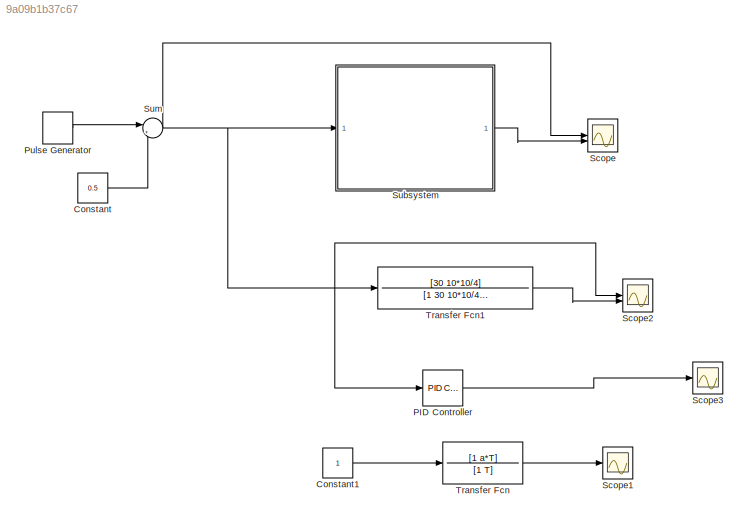
MODEL slx_9a09b1b37c67
KIND model
CONFIG AbsTol = auto
CONFIG EnableMultiTasking = off
CONFIG FixedStep = auto
CONFIG MaxStep = auto
CONFIG MinStep = auto
CONFIG RelTol = 1e-3
CONFIG SampleTimeConstraint = Unconstrained
CONFIG SolverName = VariableStepAuto
CONFIG StartTime = 0.0
CONFIG StopTime = 20
BLOCK [Constant] Constant
  Value = 0.5
BLOCK [Constant] Constant1
BLOCK [Reference] PID Controller  REF=slpidlib/PID Controller
  LibrarySourceBlock = simulink/Continuous/PID Controller
  SourceBlock = slpidlib/PID Controller
  SourceType = PID 1dof
BLOCK [DiscretePulseGenerator] Pulse Generator
  Period = 5
  PulseType = Time based
  PulseWidth = 50
BLOCK [Scope] Scope
  Floating = off
  NumInputPorts = 2
  ScopeSpecificationString = Simulink.scopes.TimeScopeBlockCfg('CurrentConfiguration', extmgr.ConfigurationSet(extmgr.Configuration('Core','General UI',true),extmgr.Configuration('Core','Source UI',true),extmgr.Configuration('Sources','WiredSimulink',true),extmgr.Configuration('Visuals','Time Domain',true,'SerializedDisplays',{struct('MinYLimReal','-1.81249','MaxYLimReal','1.52216','YLabelReal','','MinYLimMag','0.00000','MaxY...<+1414ch>
BLOCK [Scope] Scope1
  Floating = off
  NumInputPorts = 1
  ScopeSpecificationString = Simulink.scopes.TimeScopeBlockCfg('CurrentConfiguration', extmgr.ConfigurationSet(extmgr.Configuration('Core','General UI',true),extmgr.Configuration('Core','Source UI',true),extmgr.Configuration('Sources','WiredSimulink',true,'DataLoggingVariableName','ScopeData1'),extmgr.Configuration('Visuals','Time Domain',true,'SerializedDisplays',{struct('MinYLimReal','-0.24999','MaxYLimReal','2.2499','YLabe...<+1397ch>
BLOCK [Scope] Scope2
  Floating = off
  NumInputPorts = 2
  ScopeSpecificationString = Simulink.scopes.TimeScopeBlockCfg('CurrentConfiguration', extmgr.ConfigurationSet(extmgr.Configuration('Core','General UI',true),extmgr.Configuration('Core','Source UI',true),extmgr.Configuration('Sources','WiredSimulink',true,'DataLoggingVariableName','ScopeData3'),extmgr.Configuration('Visuals','Time Domain',true,'SerializedDisplays',{struct('MinYLimReal','-1.16634','MaxYLimReal','0.58766','YLab...<+1451ch>
BLOCK [Scope] Scope3
  Floating = off
  NumInputPorts = 1
  ScopeSpecificationString = Simulink.scopes.TimeScopeBlockCfg('CurrentConfiguration', extmgr.ConfigurationSet(extmgr.Configuration('Core','General UI',true),extmgr.Configuration('Core','Source UI',true),extmgr.Configuration('Sources','WiredSimulink',true,'DataLoggingVariableName','ScopeData4'),extmgr.Configuration('Visuals','Time Domain',true,'SerializedDisplays',{struct('MinYLimReal','-3750015.625','MaxYLimReal','3750015.62...<+1474ch>
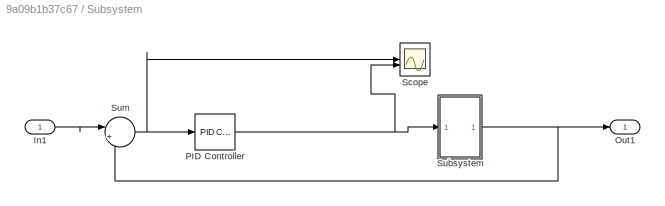
BLOCK [SubSystem] Subsystem
BLOCK [Inport] Subsystem/In1
BLOCK [Outport] Subsystem/Out1
BLOCK [Reference] Subsystem/PID Controller  REF=slpidlib/PID Controller
  LibrarySourceBlock = simulink/Continuous/PID Controller
  SourceBlock = slpidlib/PID Controller
  SourceType = PID 1dof
BLOCK [Scope] Subsystem/Scope
  Floating = off
  NumInputPorts = 2
  ScopeSpecificationString = Simulink.scopes.TimeScopeBlockCfg('CurrentConfiguration', extmgr.ConfigurationSet(extmgr.Configuration('Core','General UI',true),extmgr.Configuration('Core','Source UI',true),extmgr.Configuration('Sources','WiredSimulink',true,'DataLoggingVariableName','ScopeData2'),extmgr.Configuration('Visuals','Time Domain',true,'SerializedDisplays',{struct('MinYLimReal','-0.11893','MaxYLimReal','0.10953','YLab...<+2099ch>
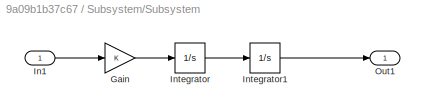
BLOCK [SubSystem] Subsystem/Subsystem
BLOCK [Gain] Subsystem/Subsystem/Gain
BLOCK [Inport] Subsystem/Subsystem/In1
BLOCK [Integrator] Subsystem/Subsystem/Integrator
BLOCK [Integrator] Subsystem/Subsystem/Integrator1
BLOCK [Outport] Subsystem/Subsystem/Out1
BLOCK [Sum] Subsystem/Sum
  Inputs = |+-
BLOCK [Sum] Sum
  Inputs = |+-
BLOCK [TransferFcn] Transfer Fcn
  Denominator = [1 T]
  Numerator = [1 a*T]
BLOCK [TransferFcn] Transfer Fcn1
  Denominator = [1 30 10*10/4 ]
  Numerator = [30 10*10/4]
LINE Constant1:1 -> Transfer Fcn:1
LINE Constant:1 -> Sum:2
LINE PID Controller:1 -> Scope3:1
LINE Pulse Generator:1 -> Sum:1
LINE Subsystem/In1:1 -> Subsystem/Sum:1
NET Subsystem/PID Controller:1 -> Subsystem/Scope:2, Subsystem/Subsystem:1
LINE Subsystem/Subsystem/Gain:1 -> Subsystem/Subsystem/Integrator:1
LINE Subsystem/Subsystem/In1:1 -> Subsystem/Subsystem/Gain:1
LINE Subsystem/Subsystem/Integrator1:1 -> Subsystem/Subsystem/Out1:1
LINE Subsystem/Subsystem/Integrator:1 -> Subsystem/Subsystem/Integrator1:1
NET Subsystem/Subsystem:1 -> Subsystem/Out1:1, Subsystem/Sum:2
NET Subsystem/Sum:1 -> Subsystem/PID Controller:1, Subsystem/Scope:1
LINE Subsystem:1 -> Scope:2
NET Sum:1 -> PID Controller:1, Scope2:1, Scope:1, Subsystem:1, Transfer Fcn1:1
LINE Transfer Fcn1:1 -> Scope2:2
LINE Transfer Fcn:1 -> Scope1:1
note: NET lines group one-source signal fan-out (src -> all destinations, sorted); 1:1 wires keep LINE
